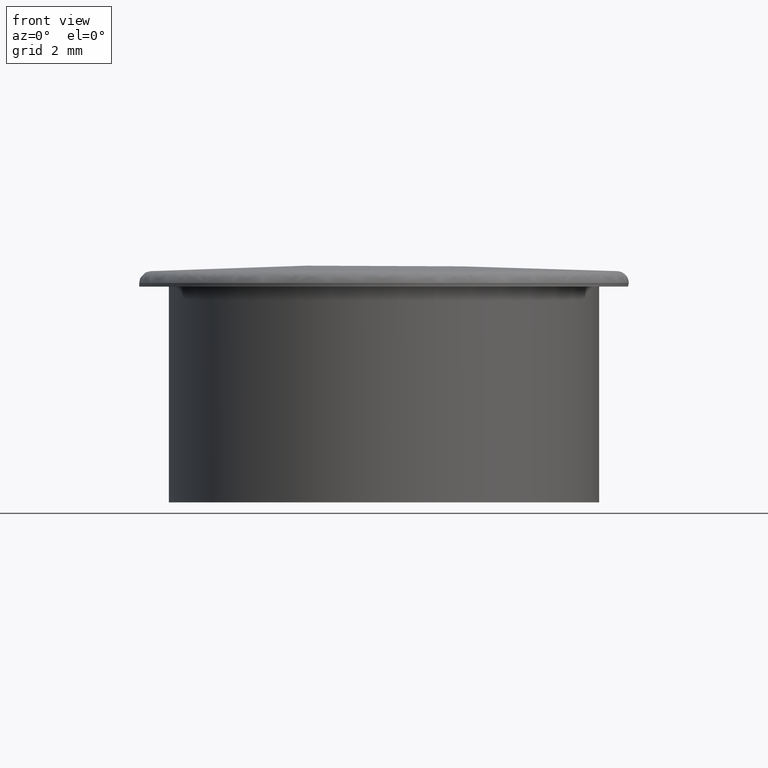
[diagram: clean part render]
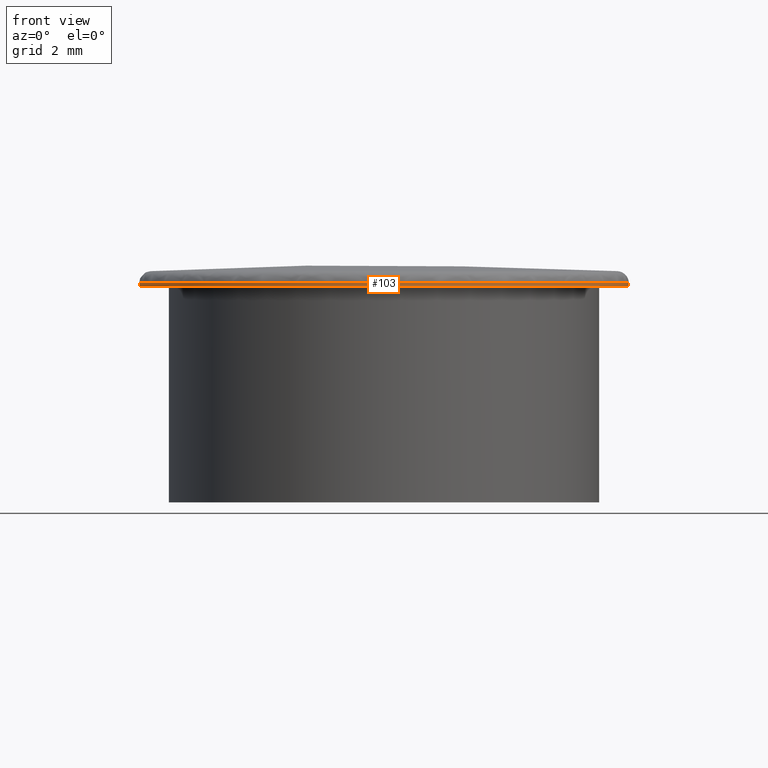
[diagram: same view with one face highlighted and labeled with its STEP entity id]
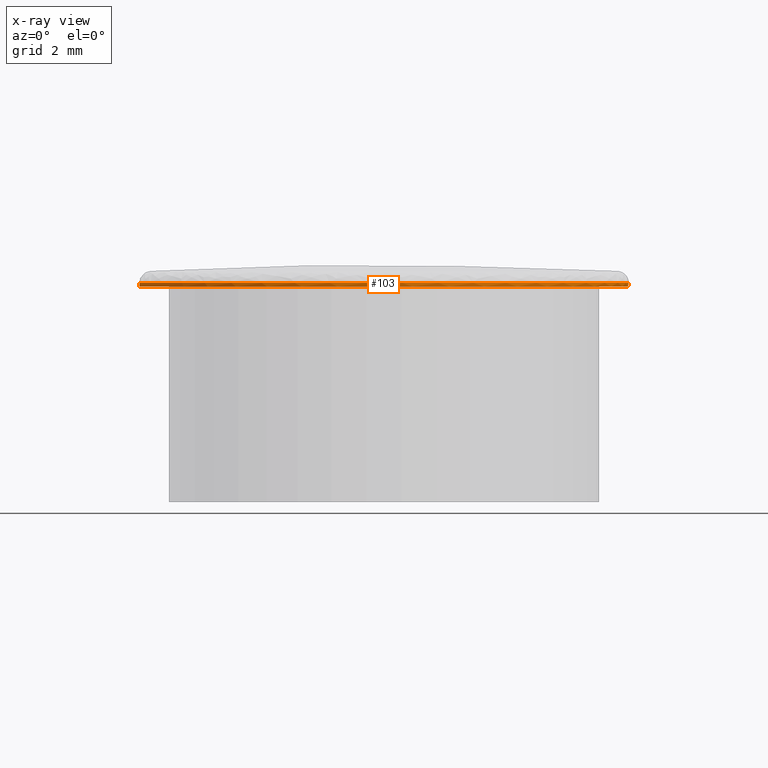
[diagram: x-ray of the same camera — body ghosted, the highlighted face saturated]
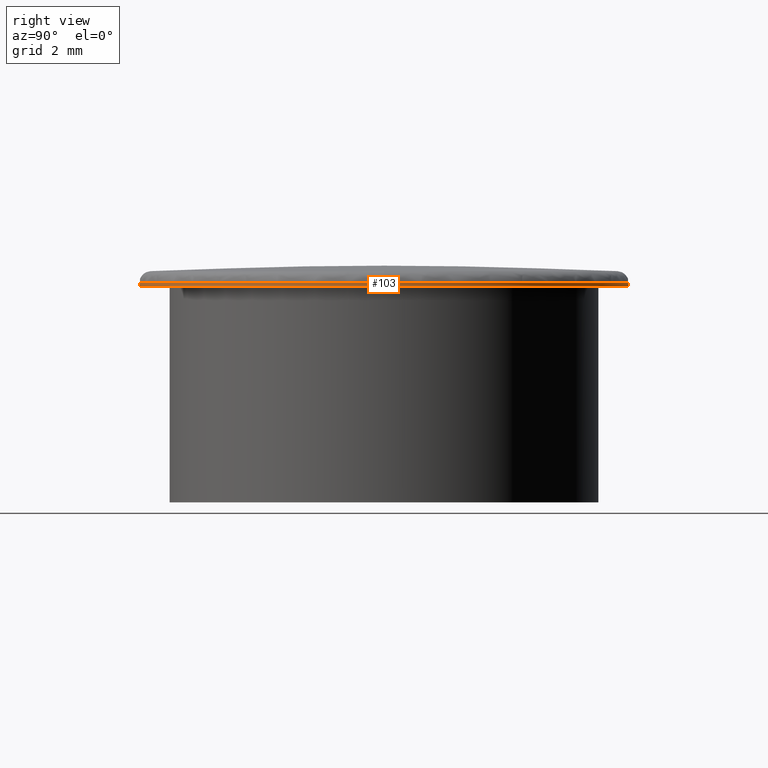
[diagram: same view with one face highlighted and labeled with its STEP entity id]
A machine part, front view. The second image highlights one B-rep face of the part: STEP entity #103.
The next image is the same camera in x-ray: the body ghosted, the highlighted face saturated — about 0% of this face is hidden behind the body in this view.
A second angle (right view) of the same face is appended — the face is thin or edge-on in the first view.
In plain terms, the highlighted cylindrical surface (bore or boss wall) has radius 8.25 mm, axis along (0, 0, -1).
Its self-contained STEP definition (entity closure, byte-faithful):
#21=FACE_BOUND('',#43,.T.);
#24=CYLINDRICAL_SURFACE('',#118,8.25000000000001);
#30=FACE_OUTER_BOUND('',#42,.T.);
#42=EDGE_LOOP('',(#84,#85));
#43=EDGE_LOOP('',(#86));
#50=CIRCLE('',#117,8.25000000000001);
#51=CIRCLE('',#119,8.25000000000001);
#52=CIRCLE('',#120,8.25000000000001);
#60=VERTEX_POINT('',#175);
#61=VERTEX_POINT('',#178);
#62=VERTEX_POINT('',#179);
#69=EDGE_CURVE('',#60,#60,#50,.T.);
#70=EDGE_CURVE('',#61,#62,#51,.T.);
#71=EDGE_CURVE('',#62,#61,#52,.T.);
#84=ORIENTED_EDGE('',*,*,#70,.T.);
#85=ORIENTED_EDGE('',*,*,#71,.T.);
#86=ORIENTED_EDGE('',*,*,#69,.F.);
#103=ADVANCED_FACE('',(#30,#21),#24,.T.);
#117=AXIS2_PLACEMENT_3D('',#176,#145,#146);
#118=AXIS2_PLACEMENT_3D('',#177,#147,#148);
#119=AXIS2_PLACEMENT_3D('',#180,#149,#150);
#120=AXIS2_PLACEMENT_3D('',#181,#151,#152);
#145=DIRECTION('center_axis',(0.,0.,-1.));
#146=DIRECTION('ref_axis',(1.,0.,0.));
#147=DIRECTION('center_axis',(0.,0.,-1.));
#148=DIRECTION('ref_axis',(1.,0.,0.));
#149=DIRECTION('center_axis',(0.,0.,-1.));
#150=DIRECTION('ref_axis',(1.,0.,0.));
#151=DIRECTION('center_axis',(0.,0.,-1.));
#152=DIRECTION('ref_axis',(1.,0.,0.));
#175=CARTESIAN_POINT('',(-8.25000000000001,0.,0.));
#176=CARTESIAN_POINT('Origin',(0.,0.,0.));
#177=CARTESIAN_POINT('Origin',(0.,0.,0.));
#178=CARTESIAN_POINT('',(8.25000000000001,0.,0.121007634702664));
#179=CARTESIAN_POINT('',(-8.25000000000001,0.,0.121007634702664));
#180=CARTESIAN_POINT('Origin',(0.,0.,0.121007634702664));
#181=CARTESIAN_POINT('Origin',(0.,0.,0.121007634702664));